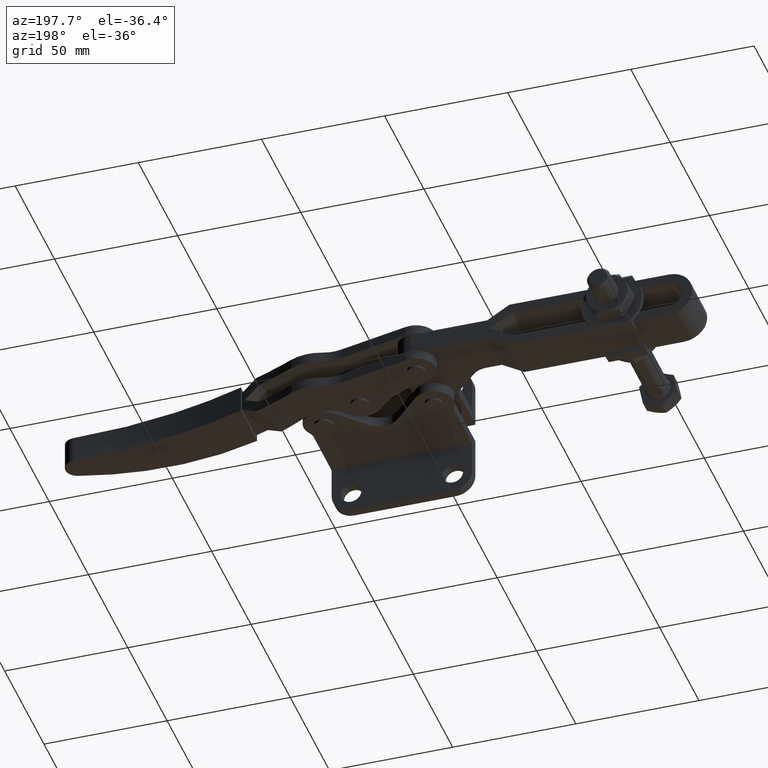
[diagram: clean part render]
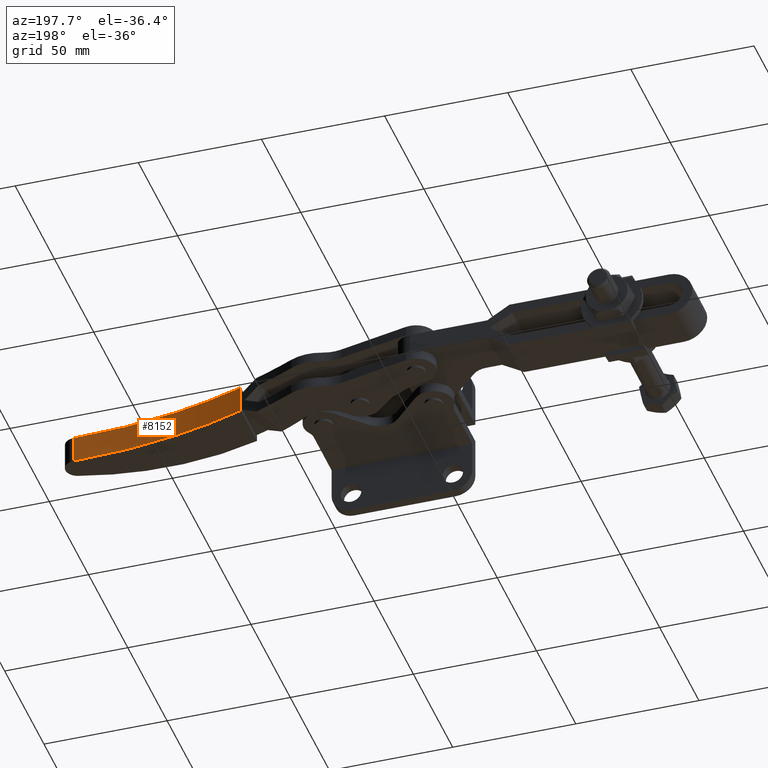
[diagram: same view with one face highlighted and labeled with its STEP entity id]
A machine part, auxiliary view. The second image highlights one B-rep face of the part: STEP entity #8152.
In plain terms, the highlighted face is a freeform B-spline surface patch.
Its self-contained STEP definition (entity closure, byte-faithful):
#80 = CARTESIAN_POINT ( 'NONE',  ( 94.08862832718712400, 37.00352430664058500, -9.499999999998898700 ) ) ;
#436 = B_SPLINE_CURVE_WITH_KNOTS ( 'NONE', 3,
 ( #5173, #6029, #941, #6875 ),
 .UNSPECIFIED., .F., .F.,
 ( 4, 4 ),
 ( 0.0000000000000000000, 1.000000000000000000 ),
 .UNSPECIFIED. ) ;
#457 = CARTESIAN_POINT ( 'NONE',  ( 22.61765067861182400, 48.70981663228461400, 1.499999977681685200 ) ) ;
#495 = CARTESIAN_POINT ( 'NONE',  ( 36.07067167247787900, 43.92155803111089100, 1.610000000000180600 ) ) ;
#528 = CARTESIAN_POINT ( 'NONE',  ( 65.02064933134558100, 37.86199547380473300, -0.6339999999993373200 ) ) ;
#575 = CARTESIAN_POINT ( 'NONE',  ( 94.82447143215577500, 37.01548470076753000, -2.877999999998838800 ) ) ;
#941 = CARTESIAN_POINT ( 'NONE',  ( 94.08870149788568000, 37.00397104138748700, -0.3333333333322139300 ) ) ;
#1280 = CARTESIAN_POINT ( 'NONE',  ( 22.61764969187313700, 48.71022459943880300, -7.666666673493495000 ) ) ;
#1358 = CARTESIAN_POINT ( 'NONE',  ( 36.07135661156857500, 43.92573985015547300, -2.877999999999952600 ) ) ;
#1396 = CARTESIAN_POINT ( 'NONE',  ( 65.02093730965337700, 37.86375369316767300, -5.121999999999471400 ) ) ;
#1432 = CARTESIAN_POINT ( 'NONE',  ( 94.82442654128794900, 37.01521062459185900, -7.365999999998976500 ) ) ;
#1512 = ORIENTED_EDGE ( 'NONE', *, *, #4399, .T. ) ;
#1561 = B_SPLINE_CURVE_WITH_KNOTS ( 'NONE', 5,
 ( #10241, #6041, #1802, #7745, #2640, #8587 ),
 .UNSPECIFIED., .F., .F.,
 ( 6, 6 ),
 ( 0.0000000000000000000, 0.07277428358872180300 ),
 .UNSPECIFIED. ) ;
#1802 = CARTESIAN_POINT ( 'NONE',  ( 64.88127984249584300, 37.90677618376233200, 1.500000000000564700 ) ) ;
#2205 = CARTESIAN_POINT ( 'NONE',  ( 36.07109979609454300, 43.92417189198890500, -7.366000000000092000 ) ) ;
#2231 = CARTESIAN_POINT ( 'NONE',  ( 65.02003744710761200, 37.85825968299474200, -9.609999999999612200 ) ) ;
#2640 = CARTESIAN_POINT ( 'NONE',  ( 36.49559054828366600, 43.82705920699923800, 1.500000000000026600 ) ) ;
#2821 = ORIENTED_EDGE ( 'NONE', *, *, #3126, .T. ) ;
#3045 = CARTESIAN_POINT ( 'NONE',  ( 79.37803966652069200, 36.80215480941414800, -9.499999999999172200 ) ) ;
#3048 = B_SPLINE_SURFACE_WITH_KNOTS ( 'NONE', 5, 5, ( 
 ( #4675, #3861, #9779, #4714, #10646, #5579 ),
 ( #495, #6453, #1358, #7286, #2205, #8135 ),
 ( #3057, #8966, #3901, #9819, #4743, #10679 ),
 ( #5623, #528, #6486, #1396, #7319, #2231 ),
 ( #8168, #3098, #8988, #3934, #9857, #4785 ),
 ( #10712, #5658, #575, #6520, #1432, #7369 ) ),
 .UNSPECIFIED., .F., .F., .F.,
 ( 6, 6 ),
 ( 6, 6 ),
 ( -28.01344242629252400, 45.85841210244899500 ),
 ( -5.610000000000172600, 5.610000000000168200 ),
 .UNSPECIFIED. ) ;
#3057 = CARTESIAN_POINT ( 'NONE',  ( 50.43971138660627000, 40.24491627359854100, 1.610000000000451700 ) ) ;
#3098 = CARTESIAN_POINT ( 'NONE',  ( 79.81122131006395600, 36.75897183231482800, -0.6339999999990588700 ) ) ;
#3126 = EDGE_CURVE ( 'NONE', #3610, #7802, #8962, .T. ) ;
#3136 = B_SPLINE_CURVE_WITH_KNOTS ( 'NONE', 5,
 ( #8117, #3045, #3887, #9805, #4733, #10667 ),
 .UNSPECIFIED., .F., .F.,
 ( 6, 6 ),
 ( 1.110764993427085300E-016, 0.07277428358943997800 ),
 .UNSPECIFIED. ) ;
#3173 = B_SPLINE_CURVE_WITH_KNOTS ( 'NONE', 3,
 ( #5510, #1280, #9741, #4666, #10598, #5542, #457 ),
 .UNSPECIFIED., .F., .F.,
 ( 4, 3, 4 ),
 ( 0.0000000000000000000, 0.005499999981413475900, 0.01099999996295201100 ),
 .UNSPECIFIED. ) ;
#3517 = ORIENTED_EDGE ( 'NONE', *, *, #8530, .T. ) ;
#3610 = VERTEX_POINT ( 'NONE', #10239 ) ;
#3861 = CARTESIAN_POINT ( 'NONE',  ( 21.92396640985514000, 48.95563792628658500, -0.6340000000001553300 ) ) ;
#3887 = CARTESIAN_POINT ( 'NONE',  ( 64.88127984611719500, 37.90677620651587200, -9.499999999999449300 ) ) ;
#3901 = CARTESIAN_POINT ( 'NONE',  ( 50.44061651251213600, 40.25044241862737200, -2.877999999999681300 ) ) ;
#3934 = CARTESIAN_POINT ( 'NONE',  ( 79.81150218212198400, 36.76068666526443000, -5.121999999999192500 ) ) ;
#4116 = EDGE_CURVE ( 'NONE', #3610, #10021, #436, .T. ) ;
#4399 = EDGE_CURVE ( 'NONE', #7802, #6586, #3136, .T. ) ;
#4504 = CARTESIAN_POINT ( 'NONE',  ( 22.61765067860474300, 48.70981663193917700, -9.499999977619630400 ) ) ;
#4666 = CARTESIAN_POINT ( 'NONE',  ( 22.61764938079904800, 48.71035321381177100, -4.000000000000246900 ) ) ;
#4675 = CARTESIAN_POINT ( 'NONE',  ( 21.92390460133217200, 48.95526056125981300, 1.609999999999911900 ) ) ;
#4714 = CARTESIAN_POINT ( 'NONE',  ( 21.92397400499478300, 48.95568429756205800, -5.122000000000288500 ) ) ;
#4733 = CARTESIAN_POINT ( 'NONE',  ( 36.49559054940129200, 43.82705921383596600, -9.499999999999984000 ) ) ;
#4743 = CARTESIAN_POINT ( 'NONE',  ( 50.44032841396808900, 40.24868346517428100, -7.365999999999819400 ) ) ;
#4785 = CARTESIAN_POINT ( 'NONE',  ( 79.81074130615719800, 36.75604122212305900, -9.609999999999335100 ) ) ;
#5036 = CARTESIAN_POINT ( 'NONE',  ( 94.08862832718712400, 37.00352430664058500, -9.499999999998898700 ) ) ;
#5161 = CARTESIAN_POINT ( 'NONE',  ( 94.08862743237300200, 37.00351884267903600, -8.399999999998893700 ) ) ;
#5173 = CARTESIAN_POINT ( 'NONE',  ( 94.08871309118799800, 37.00404182299835300, -3.999999999998887100 ) ) ;
#5510 = CARTESIAN_POINT ( 'NONE',  ( 22.61765067860474300, 48.70981663193917700, -9.499999977619630400 ) ) ;
#5542 = CARTESIAN_POINT ( 'NONE',  ( 22.61764969187247600, 48.71022459966715000, -0.3333333264236187400 ) ) ;
#5579 = CARTESIAN_POINT ( 'NONE',  ( 21.92390460120892500, 48.95526056050603400, -9.610000000000431100 ) ) ;
#5605 = ORIENTED_EDGE ( 'NONE', *, *, #6989, .F. ) ;
#5623 = CARTESIAN_POINT ( 'NONE',  ( 65.02003744291559400, 37.85825965740212200, 1.610000000000729700 ) ) ;
#5658 = CARTESIAN_POINT ( 'NONE',  ( 94.82442654118325700, 37.01521062395354300, -0.6339999999987735400 ) ) ;
#5851 = VERTEX_POINT ( 'NONE', #7734 ) ;
#5949 = EDGE_LOOP ( 'NONE', ( #9878, #2821, #1512, #3517, #5605 ) ) ;
#6029 = CARTESIAN_POINT ( 'NONE',  ( 94.08870149788570800, 37.00397104138748700, -2.166666666665551000 ) ) ;
#6041 = CARTESIAN_POINT ( 'NONE',  ( 79.37803966708975200, 36.80215481192972500, 1.500000000000838200 ) ) ;
#6453 = CARTESIAN_POINT ( 'NONE',  ( 36.07109979522153500, 43.92417188665979900, -0.6339999999998872100 ) ) ;
#6486 = CARTESIAN_POINT ( 'NONE',  ( 65.02093730882498300, 37.86375368811032900, -2.877999999999402800 ) ) ;
#6520 = CARTESIAN_POINT ( 'NONE',  ( 94.82447143218477900, 37.01548470094434900, -5.121999999998905700 ) ) ;
#6586 = VERTEX_POINT ( 'NONE', #4504 ) ;
#6875 = CARTESIAN_POINT ( 'NONE',  ( 94.08862832723765700, 37.00352430617692800, 1.499999999876122200 ) ) ;
#6989 = EDGE_CURVE ( 'NONE', #10021, #5851, #1561, .T. ) ;
#7286 = CARTESIAN_POINT ( 'NONE',  ( 36.07135661185652300, 43.92573985191317100, -5.122000000000021200 ) ) ;
#7319 = CARTESIAN_POINT ( 'NONE',  ( 65.02064933385784700, 37.86199548914223800, -7.365999999999542200 ) ) ;
#7369 = CARTESIAN_POINT ( 'NONE',  ( 94.82429213603113300, 37.01439002832209000, -9.609999999999045500 ) ) ;
#7652 = CARTESIAN_POINT ( 'NONE',  ( 94.08870884786546200, 37.00401591586653900, -6.199999999998891700 ) ) ;
#7734 = CARTESIAN_POINT ( 'NONE',  ( 22.61765067861182400, 48.70981663228461400, 1.499999977681685200 ) ) ;
#7745 = CARTESIAN_POINT ( 'NONE',  ( 50.58685581621619300, 40.24673615195781200, 1.500000000000292400 ) ) ;
#7802 = VERTEX_POINT ( 'NONE', #5036 ) ;
#8117 = CARTESIAN_POINT ( 'NONE',  ( 94.08862832718712400, 37.00352430664058500, -9.499999999998898700 ) ) ;
#8135 = CARTESIAN_POINT ( 'NONE',  ( 36.07067167393210400, 43.92155803998803500, -9.610000000000162900 ) ) ;
#8152 = ADVANCED_FACE ( 'NONE', ( #8501 ), #3048, .T. ) ;
#8168 = CARTESIAN_POINT ( 'NONE',  ( 79.81074130676482500, 36.75604122583442300, 1.610000000001008600 ) ) ;
#8501 = FACE_OUTER_BOUND ( 'NONE', #5949, .T. ) ;
#8513 = CARTESIAN_POINT ( 'NONE',  ( 94.08872468450429900, 37.00411260469467600, -5.099999999998888500 ) ) ;
#8530 = EDGE_CURVE ( 'NONE', #6586, #5851, #3173, .T. ) ;
#8587 = CARTESIAN_POINT ( 'NONE',  ( 22.61765067861182400, 48.70981663228461400, 1.499999977681685200 ) ) ;
#8962 = B_SPLINE_CURVE_WITH_KNOTS ( 'NONE', 5,
 ( #9354, #8513, #7652, #10201, #5161, #80 ),
 .UNSPECIFIED., .F., .F.,
 ( 6, 6 ),
 ( 0.0000000000000000000, 1.000000000000000000 ),
 .UNSPECIFIED. ) ;
#8966 = CARTESIAN_POINT ( 'NONE',  ( 50.44032841785639200, 40.24868348891467200, -0.6339999999996157600 ) ) ;
#8988 = CARTESIAN_POINT ( 'NONE',  ( 79.81150218223356800, 36.76068666594592600, -2.877999999999124400 ) ) ;
#9354 = CARTESIAN_POINT ( 'NONE',  ( 94.08871309118799800, 37.00404182299835300, -3.999999999998887100 ) ) ;
#9567 = CARTESIAN_POINT ( 'NONE',  ( 94.08862832723765700, 37.00352430617692800, 1.499999999876122200 ) ) ;
#9741 = CARTESIAN_POINT ( 'NONE',  ( 22.61764938079922200, 48.71035321375509900, -5.833333327138071800 ) ) ;
#9779 = CARTESIAN_POINT ( 'NONE',  ( 21.92397400501819100, 48.95568429770518300, -2.878000000000220800 ) ) ;
#9805 = CARTESIAN_POINT ( 'NONE',  ( 50.58685581025629600, 40.24673611589901900, -9.499999999999721100 ) ) ;
#9819 = CARTESIAN_POINT ( 'NONE',  ( 50.44061651122282100, 40.25044241075549700, -5.121999999999749400 ) ) ;
#9857 = CARTESIAN_POINT ( 'NONE',  ( 79.81122130970588600, 36.75897183012772000, -7.365999999999262500 ) ) ;
#9878 = ORIENTED_EDGE ( 'NONE', *, *, #4116, .F. ) ;
#10021 = VERTEX_POINT ( 'NONE', #9567 ) ;
#10201 = CARTESIAN_POINT ( 'NONE',  ( 94.08867717457449900, 37.00382253812927000, -7.299999999998891400 ) ) ;
#10239 = CARTESIAN_POINT ( 'NONE',  ( 94.08871309118799800, 37.00404182299835300, -3.999999999998887100 ) ) ;
#10241 = CARTESIAN_POINT ( 'NONE',  ( 94.08862832723765700, 37.00352430617692800, 1.499999999876122200 ) ) ;
#10598 = CARTESIAN_POINT ( 'NONE',  ( 22.61764938079887300, 48.71035321386844400, -2.166666672820735300 ) ) ;
#10646 = CARTESIAN_POINT ( 'NONE',  ( 21.92396640978196100, 48.95563792583890700, -7.366000000000359400 ) ) ;
#10667 = CARTESIAN_POINT ( 'NONE',  ( 22.61765067860474300, 48.70981663193917700, -9.499999977619630400 ) ) ;
#10679 = CARTESIAN_POINT ( 'NONE',  ( 50.43971138012601300, 40.24491623403285000, -9.609999999999889300 ) ) ;
#10712 = CARTESIAN_POINT ( 'NONE',  ( 94.82429213584106300, 37.01439002716294600, 1.610000000001294400 ) ) ;